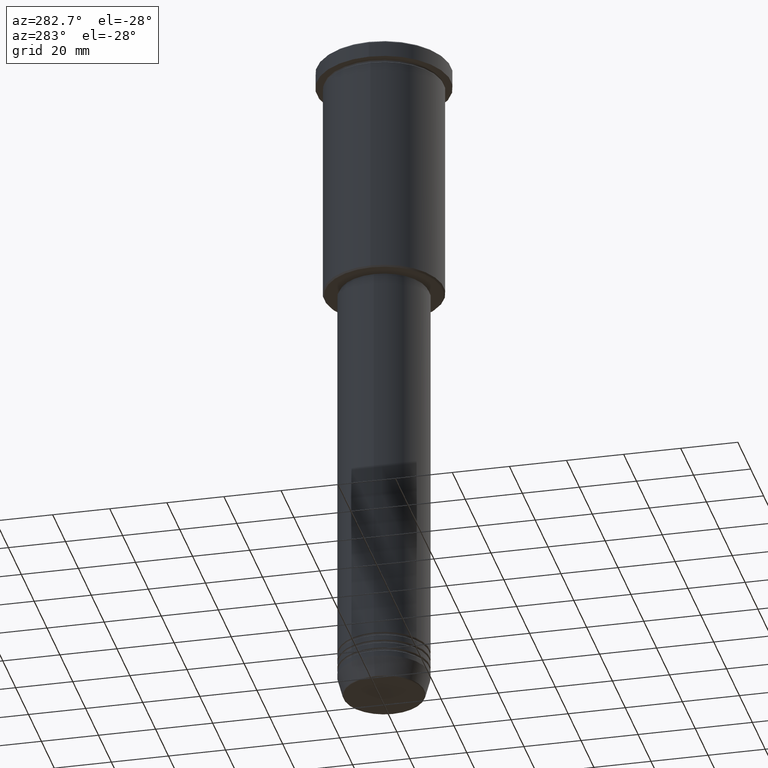
[diagram: clean part render]
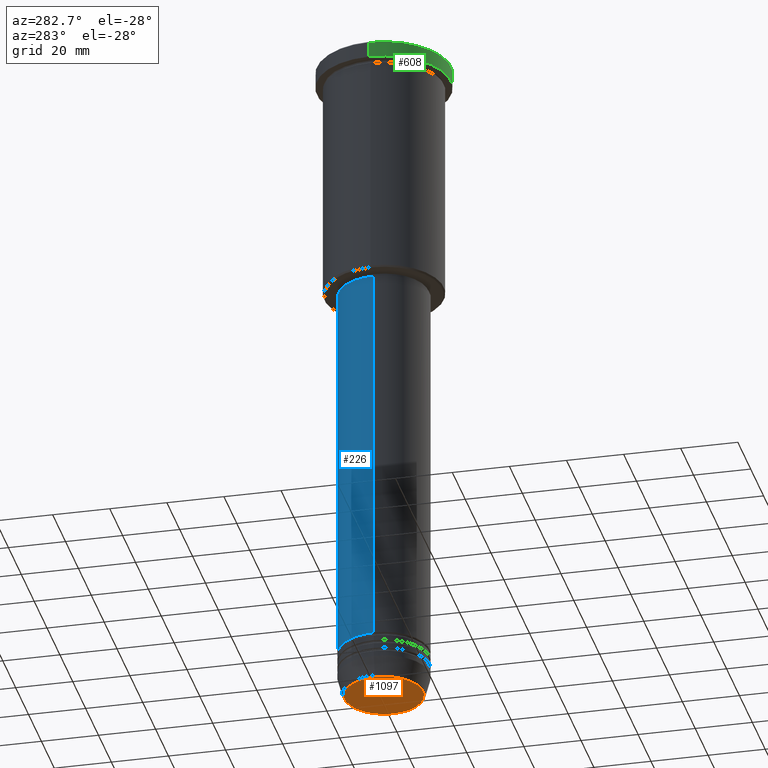
[diagram: same view with three faces highlighted in distinct colors, each labeled with its STEP entity id]
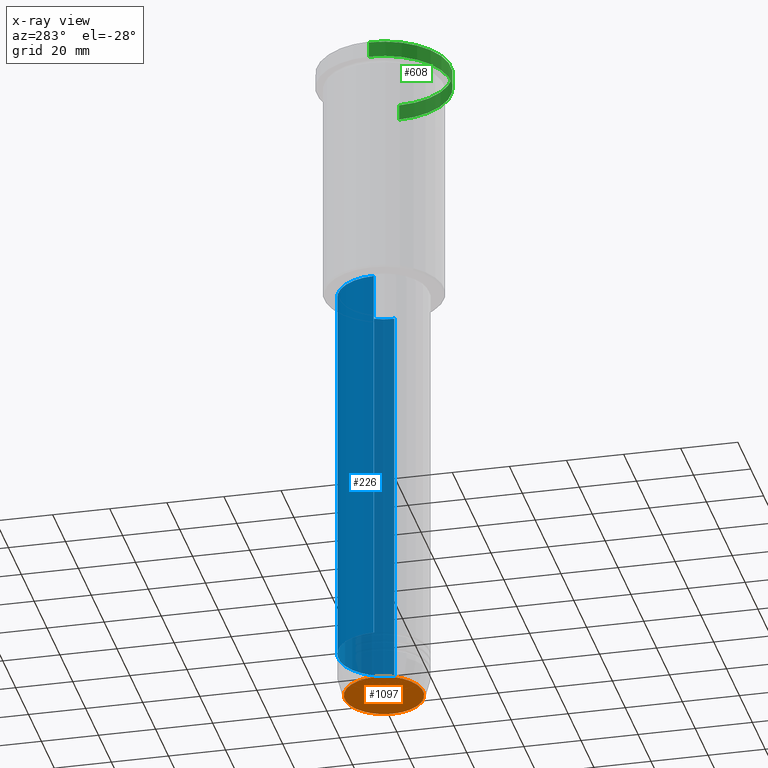
[diagram: x-ray of the same camera — body ghosted, the three highlighted faces saturated]
A machine part, auxiliary view with three faces highlighted in distinct colors.
The next image is the same camera in x-ray (body ghosted, the three faces saturated) — at least one of them is partly hidden behind the body in this view.
Their STEP definitions:

[orange] entity #1097 — the highlighted planar face has unit normal (0, -0, 1).
#85 = CARTESIAN_POINT ( 'NONE',  ( -13.74069215899266538, 1.712322416342416577E-15, -241.0000000000000000 ) ) ;
#96 = CIRCLE ( 'NONE', #346, 13.74069215899266538 ) ;
#103 = DIRECTION ( 'NONE',  ( 1.000000000000000000, 0.000000000000000000, 0.000000000000000000 ) ) ;
#123 = CIRCLE ( 'NONE', #897, 13.74069215899266538 ) ;
#124 = PLANE ( 'NONE',  #1123 ) ;
#180 = EDGE_LOOP ( 'NONE', ( #1118, #286 ) ) ;
#286 = ORIENTED_EDGE ( 'NONE', *, *, #570, .T. ) ;
#293 = DIRECTION ( 'NONE',  ( 0.000000000000000000, 0.000000000000000000, -1.000000000000000000 ) ) ;
#346 = AXIS2_PLACEMENT_3D ( 'NONE', #812, #640, #103 ) ;
#466 = VERTEX_POINT ( 'NONE', #85 ) ;
#468 = CARTESIAN_POINT ( 'NONE',  ( 0.000000000000000000, 0.000000000000000000, -241.0000000000000000 ) ) ;
#570 = EDGE_CURVE ( 'NONE', #466, #730, #96, .T. ) ;
#581 = DIRECTION ( 'NONE',  ( 0.000000000000000000, -0.000000000000000000, 1.000000000000000000 ) ) ;
#640 = DIRECTION ( 'NONE',  ( 0.000000000000000000, 0.000000000000000000, -1.000000000000000000 ) ) ;
#653 = DIRECTION ( 'NONE',  ( 1.000000000000000000, 0.000000000000000000, 0.000000000000000000 ) ) ;
#672 = FACE_OUTER_BOUND ( 'NONE', #180, .T. ) ;
#730 = VERTEX_POINT ( 'NONE', #963 ) ;
#812 = CARTESIAN_POINT ( 'NONE',  ( 0.000000000000000000, 0.000000000000000000, -241.0000000000000000 ) ) ;
#897 = AXIS2_PLACEMENT_3D ( 'NONE', #1006, #293, #920 ) ;
#920 = DIRECTION ( 'NONE',  ( 1.000000000000000000, 0.000000000000000000, 0.000000000000000000 ) ) ;
#963 = CARTESIAN_POINT ( 'NONE',  ( 13.74069215899266538, 0.000000000000000000, -241.0000000000000000 ) ) ;
#1006 = CARTESIAN_POINT ( 'NONE',  ( 0.000000000000000000, 0.000000000000000000, -241.0000000000000000 ) ) ;
#1097 = ADVANCED_FACE ( 'NONE', ( #672 ), #124, .F. ) ;
#1118 = ORIENTED_EDGE ( 'NONE', *, *, #1127, .T. ) ;
#1123 = AXIS2_PLACEMENT_3D ( 'NONE', #468, #581, #653 ) ;
#1127 = EDGE_CURVE ( 'NONE', #730, #466, #123, .T. ) ;

[blue] entity #226 — the highlighted cylindrical surface (partial cylindrical patch) has radius 16 mm, axis along (-0, -0, 1).
#44 = VERTEX_POINT ( 'NONE', #952 ) ;
#49 = ORIENTED_EDGE ( 'NONE', *, *, #394, .F. ) ;
#50 = DIRECTION ( 'NONE',  ( 1.000000000000000000, 0.000000000000000000, 0.000000000000000000 ) ) ;
#57 = LINE ( 'NONE', #501, #97 ) ;
#59 = CARTESIAN_POINT ( 'NONE',  ( 16.00000000000000000, 0.000000000000000000, -87.00000000000000000 ) ) ;
#75 = ORIENTED_EDGE ( 'NONE', *, *, #110, .T. ) ;
#86 = FACE_OUTER_BOUND ( 'NONE', #1026, .T. ) ;
#88 = DIRECTION ( 'NONE',  ( -0.000000000000000000, -0.000000000000000000, 1.000000000000000000 ) ) ;
#97 = VECTOR ( 'NONE', #1059, 1000.000000000000000 ) ;
#110 = EDGE_CURVE ( 'NONE', #44, #396, #1156, .T. ) ;
#127 = DIRECTION ( 'NONE',  ( -0.000000000000000000, -0.000000000000000000, 1.000000000000000000 ) ) ;
#210 = DIRECTION ( 'NONE',  ( 1.000000000000000000, 0.000000000000000000, 0.000000000000000000 ) ) ;
#211 = AXIS2_PLACEMENT_3D ( 'NONE', #572, #127, #50 ) ;
#222 = CARTESIAN_POINT ( 'NONE',  ( -16.00000000000000000, 1.959434878635765131E-15, -87.00000000000000000 ) ) ;
#226 = ADVANCED_FACE ( 'NONE', ( #86 ), #445, .T. ) ;
#257 = ORIENTED_EDGE ( 'NONE', *, *, #802, .F. ) ;
#267 = ORIENTED_EDGE ( 'NONE', *, *, #450, .T. ) ;
#285 = VECTOR ( 'NONE', #709, 1000.000000000000000 ) ;
#320 = VERTEX_POINT ( 'NONE', #59 ) ;
#363 = DIRECTION ( 'NONE',  ( -0.000000000000000000, -0.000000000000000000, 1.000000000000000000 ) ) ;
#394 = EDGE_CURVE ( 'NONE', #320, #678, #1081, .T. ) ;
#396 = VERTEX_POINT ( 'NONE', #480 ) ;
#445 = CYLINDRICAL_SURFACE ( 'NONE', #683, 16.00000000000000000 ) ;
#450 = EDGE_CURVE ( 'NONE', #396, #678, #670, .T. ) ;
#480 = CARTESIAN_POINT ( 'NONE',  ( -16.00000000000000000, 1.959434878635765131E-15, -224.9999999999999716 ) ) ;
#488 = CARTESIAN_POINT ( 'NONE',  ( -16.00000000000000000, 1.959434878635765131E-15, 0.000000000000000000 ) ) ;
#501 = CARTESIAN_POINT ( 'NONE',  ( 16.00000000000000000, 0.000000000000000000, 0.000000000000000000 ) ) ;
#572 = CARTESIAN_POINT ( 'NONE',  ( 0.000000000000000000, 0.000000000000000000, -87.00000000000000000 ) ) ;
#632 = DIRECTION ( 'NONE',  ( 1.000000000000000000, 0.000000000000000000, 0.000000000000000000 ) ) ;
#670 = LINE ( 'NONE', #488, #285 ) ;
#678 = VERTEX_POINT ( 'NONE', #222 ) ;
#683 = AXIS2_PLACEMENT_3D ( 'NONE', #1172, #363, #210 ) ;
#709 = DIRECTION ( 'NONE',  ( -0.000000000000000000, -0.000000000000000000, 1.000000000000000000 ) ) ;
#710 = CARTESIAN_POINT ( 'NONE',  ( 0.000000000000000000, 0.000000000000000000, -224.9999999999999716 ) ) ;
#802 = EDGE_CURVE ( 'NONE', #44, #320, #57, .T. ) ;
#952 = CARTESIAN_POINT ( 'NONE',  ( 16.00000000000000000, 0.000000000000000000, -224.9999999999999716 ) ) ;
#1026 = EDGE_LOOP ( 'NONE', ( #75, #267, #49, #257 ) ) ;
#1059 = DIRECTION ( 'NONE',  ( -0.000000000000000000, -0.000000000000000000, 1.000000000000000000 ) ) ;
#1081 = CIRCLE ( 'NONE', #211, 16.00000000000000000 ) ;
#1096 = AXIS2_PLACEMENT_3D ( 'NONE', #710, #88, #632 ) ;
#1156 = CIRCLE ( 'NONE', #1096, 16.00000000000000000 ) ;
#1172 = CARTESIAN_POINT ( 'NONE',  ( 0.000000000000000000, 0.000000000000000000, 0.000000000000000000 ) ) ;

[green] entity #608 — the highlighted cylindrical surface (partial cylindrical patch) has radius 23.5 mm, axis along (-0, -0, 1).
#56 = FACE_OUTER_BOUND ( 'NONE', #1128, .T. ) ;
#65 = CIRCLE ( 'NONE', #1145, 23.50000000000000000 ) ;
#81 = VERTEX_POINT ( 'NONE', #696 ) ;
#87 = EDGE_CURVE ( 'NONE', #1023, #550, #530, .T. ) ;
#93 = EDGE_CURVE ( 'NONE', #661, #81, #1053, .T. ) ;
#126 = ORIENTED_EDGE ( 'NONE', *, *, #975, .T. ) ;
#135 = CARTESIAN_POINT ( 'NONE',  ( -23.50000000000000000, 2.877919977996280320E-15, -5.999999999999994671 ) ) ;
#159 = AXIS2_PLACEMENT_3D ( 'NONE', #801, #256, #979 ) ;
#249 = VECTOR ( 'NONE', #690, 1000.000000000000000 ) ;
#256 = DIRECTION ( 'NONE',  ( -0.000000000000000000, -0.000000000000000000, 1.000000000000000000 ) ) ;
#405 = AXIS2_PLACEMENT_3D ( 'NONE', #808, #776, #652 ) ;
#530 = LINE ( 'NONE', #888, #249 ) ;
#531 = CARTESIAN_POINT ( 'NONE',  ( 0.000000000000000000, 0.000000000000000000, -0.5000000000000281997 ) ) ;
#533 = VECTOR ( 'NONE', #542, 1000.000000000000000 ) ;
#542 = DIRECTION ( 'NONE',  ( -0.000000000000000000, -0.000000000000000000, 1.000000000000000000 ) ) ;
#550 = VERTEX_POINT ( 'NONE', #1009 ) ;
#608 = ADVANCED_FACE ( 'NONE', ( #56 ), #907, .T. ) ;
#652 = DIRECTION ( 'NONE',  ( 1.000000000000000000, 0.000000000000000000, 0.000000000000000000 ) ) ;
#661 = VERTEX_POINT ( 'NONE', #844 ) ;
#690 = DIRECTION ( 'NONE',  ( -0.000000000000000000, -0.000000000000000000, 1.000000000000000000 ) ) ;
#696 = CARTESIAN_POINT ( 'NONE',  ( 23.50000000000000000, 0.000000000000000000, -0.5000000000000281997 ) ) ;
#776 = DIRECTION ( 'NONE',  ( -0.000000000000000000, -0.000000000000000000, 1.000000000000000000 ) ) ;
#801 = CARTESIAN_POINT ( 'NONE',  ( 0.000000000000000000, 0.000000000000000000, -5.999999999999994671 ) ) ;
#808 = CARTESIAN_POINT ( 'NONE',  ( 0.000000000000000000, 0.000000000000000000, 0.000000000000000000 ) ) ;
#844 = CARTESIAN_POINT ( 'NONE',  ( 23.50000000000000000, 0.000000000000000000, -5.999999999999994671 ) ) ;
#888 = CARTESIAN_POINT ( 'NONE',  ( -23.50000000000000000, 2.877919977996280320E-15, 0.000000000000000000 ) ) ;
#890 = EDGE_CURVE ( 'NONE', #1023, #661, #1100, .T. ) ;
#907 = CYLINDRICAL_SURFACE ( 'NONE', #405, 23.50000000000000000 ) ;
#916 = DIRECTION ( 'NONE',  ( 1.000000000000000000, 0.000000000000000000, 0.000000000000000000 ) ) ;
#918 = ORIENTED_EDGE ( 'NONE', *, *, #87, .F. ) ;
#975 = EDGE_CURVE ( 'NONE', #81, #550, #65, .T. ) ;
#979 = DIRECTION ( 'NONE',  ( 1.000000000000000000, 0.000000000000000000, 0.000000000000000000 ) ) ;
#1004 = ORIENTED_EDGE ( 'NONE', *, *, #890, .T. ) ;
#1009 = CARTESIAN_POINT ( 'NONE',  ( -23.50000000000000000, 2.877919977996280320E-15, -0.5000000000000281997 ) ) ;
#1023 = VERTEX_POINT ( 'NONE', #135 ) ;
#1053 = LINE ( 'NONE', #1077, #533 ) ;
#1077 = CARTESIAN_POINT ( 'NONE',  ( 23.50000000000000000, 0.000000000000000000, 0.000000000000000000 ) ) ;
#1089 = DIRECTION ( 'NONE',  ( 0.000000000000000000, 0.000000000000000000, -1.000000000000000000 ) ) ;
#1100 = CIRCLE ( 'NONE', #159, 23.50000000000000000 ) ;
#1103 = ORIENTED_EDGE ( 'NONE', *, *, #93, .T. ) ;
#1128 = EDGE_LOOP ( 'NONE', ( #918, #1004, #1103, #126 ) ) ;
#1145 = AXIS2_PLACEMENT_3D ( 'NONE', #531, #1089, #916 ) ;